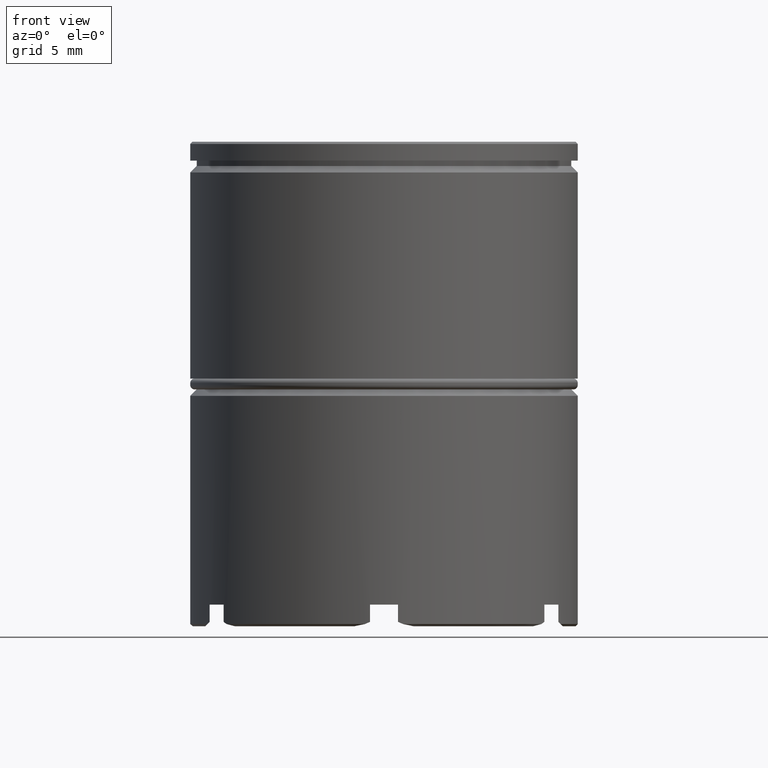
[diagram: clean part render]
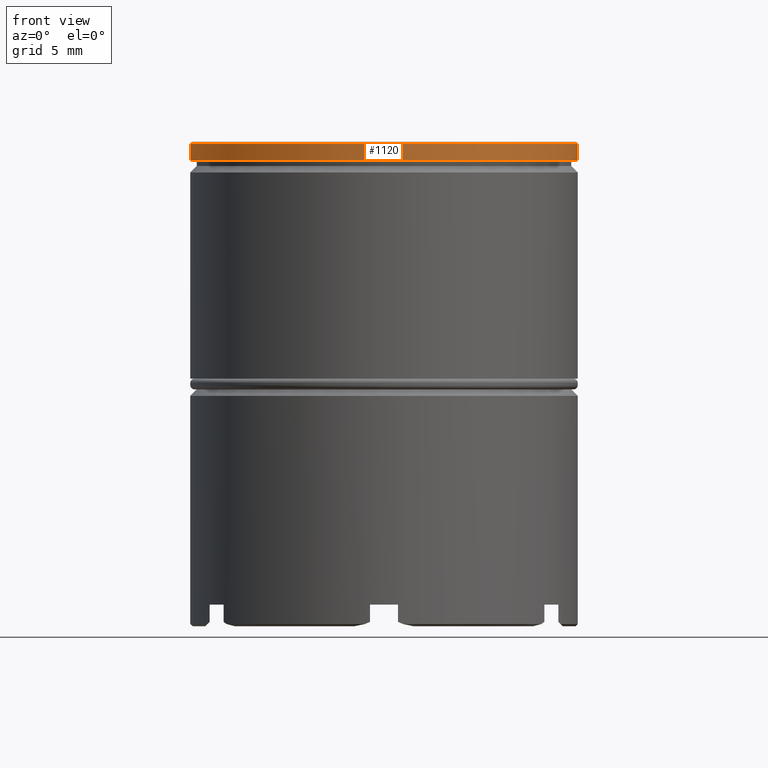
[diagram: same view with one face highlighted and labeled with its STEP entity id]
A machine part, front view. The second image highlights one B-rep face of the part: STEP entity #1120.
In plain terms, the highlighted cylindrical surface (partial cylindrical patch) has radius 9 mm, axis along (-0, -0, 1).
Its self-contained STEP definition (entity closure, byte-faithful):
#21 = CIRCLE ( 'NONE', #1368, 9.000000000000000000 ) ;
#64 = DIRECTION ( 'NONE',  ( -0.000000000000000000, -0.000000000000000000, 1.000000000000000000 ) ) ;
#213 = ORIENTED_EDGE ( 'NONE', *, *, #504, .T. ) ;
#218 = ORIENTED_EDGE ( 'NONE', *, *, #1197, .T. ) ;
#259 = DIRECTION ( 'NONE',  ( -0.000000000000000000, -0.000000000000000000, 1.000000000000000000 ) ) ;
#301 = VERTEX_POINT ( 'NONE', #767 ) ;
#361 = DIRECTION ( 'NONE',  ( 0.000000000000000000, 0.000000000000000000, -1.000000000000000000 ) ) ;
#376 = DIRECTION ( 'NONE',  ( 1.000000000000000000, 0.000000000000000000, 0.000000000000000000 ) ) ;
#399 = CYLINDRICAL_SURFACE ( 'NONE', #1608, 9.000000000000000000 ) ;
#429 = CARTESIAN_POINT ( 'NONE',  ( 9.000000000000000000, 0.000000000000000000, -0.8749999999999998890 ) ) ;
#451 = EDGE_CURVE ( 'NONE', #1097, #930, #557, .T. ) ;
#504 = EDGE_CURVE ( 'NONE', #930, #301, #21, .T. ) ;
#525 = CARTESIAN_POINT ( 'NONE',  ( 0.000000000000000000, 0.000000000000000000, 0.000000000000000000 ) ) ;
#528 = CIRCLE ( 'NONE', #1552, 9.000000000000000000 ) ;
#554 = LINE ( 'NONE', #1293, #787 ) ;
#557 = LINE ( 'NONE', #1035, #1631 ) ;
#738 = EDGE_LOOP ( 'NONE', ( #1089, #218, #1378, #213 ) ) ;
#744 = CARTESIAN_POINT ( 'NONE',  ( 0.000000000000000000, 0.000000000000000000, -0.09999999999999419076 ) ) ;
#767 = CARTESIAN_POINT ( 'NONE',  ( -9.000000000000000000, 1.102182119232617714E-15, -0.09999999999999419076 ) ) ;
#768 = FACE_OUTER_BOUND ( 'NONE', #738, .T. ) ;
#787 = VECTOR ( 'NONE', #259, 1000.000000000000000 ) ;
#797 = DIRECTION ( 'NONE',  ( -0.000000000000000000, -0.000000000000000000, 1.000000000000000000 ) ) ;
#930 = VERTEX_POINT ( 'NONE', #1614 ) ;
#1035 = CARTESIAN_POINT ( 'NONE',  ( 9.000000000000000000, 0.000000000000000000, 0.000000000000000000 ) ) ;
#1039 = DIRECTION ( 'NONE',  ( 1.000000000000000000, 0.000000000000000000, 0.000000000000000000 ) ) ;
#1089 = ORIENTED_EDGE ( 'NONE', *, *, #1137, .F. ) ;
#1097 = VERTEX_POINT ( 'NONE', #429 ) ;
#1120 = ADVANCED_FACE ( 'NONE', ( #768 ), #399, .T. ) ;
#1137 = EDGE_CURVE ( 'NONE', #1543, #301, #554, .T. ) ;
#1197 = EDGE_CURVE ( 'NONE', #1543, #1097, #528, .T. ) ;
#1293 = CARTESIAN_POINT ( 'NONE',  ( -9.000000000000000000, 1.102182119232617714E-15, 0.000000000000000000 ) ) ;
#1335 = DIRECTION ( 'NONE',  ( 1.000000000000000000, 0.000000000000000000, 0.000000000000000000 ) ) ;
#1368 = AXIS2_PLACEMENT_3D ( 'NONE', #744, #361, #376 ) ;
#1378 = ORIENTED_EDGE ( 'NONE', *, *, #451, .T. ) ;
#1441 = CARTESIAN_POINT ( 'NONE',  ( 0.000000000000000000, 0.000000000000000000, -0.8749999999999998890 ) ) ;
#1543 = VERTEX_POINT ( 'NONE', #1549 ) ;
#1549 = CARTESIAN_POINT ( 'NONE',  ( -9.000000000000000000, 1.102182119232617714E-15, -0.8749999999999998890 ) ) ;
#1552 = AXIS2_PLACEMENT_3D ( 'NONE', #1441, #64, #1335 ) ;
#1608 = AXIS2_PLACEMENT_3D ( 'NONE', #525, #797, #1039 ) ;
#1614 = CARTESIAN_POINT ( 'NONE',  ( 9.000000000000000000, 0.000000000000000000, -0.09999999999999419076 ) ) ;
#1630 = DIRECTION ( 'NONE',  ( -0.000000000000000000, -0.000000000000000000, 1.000000000000000000 ) ) ;
#1631 = VECTOR ( 'NONE', #1630, 1000.000000000000000 ) ;